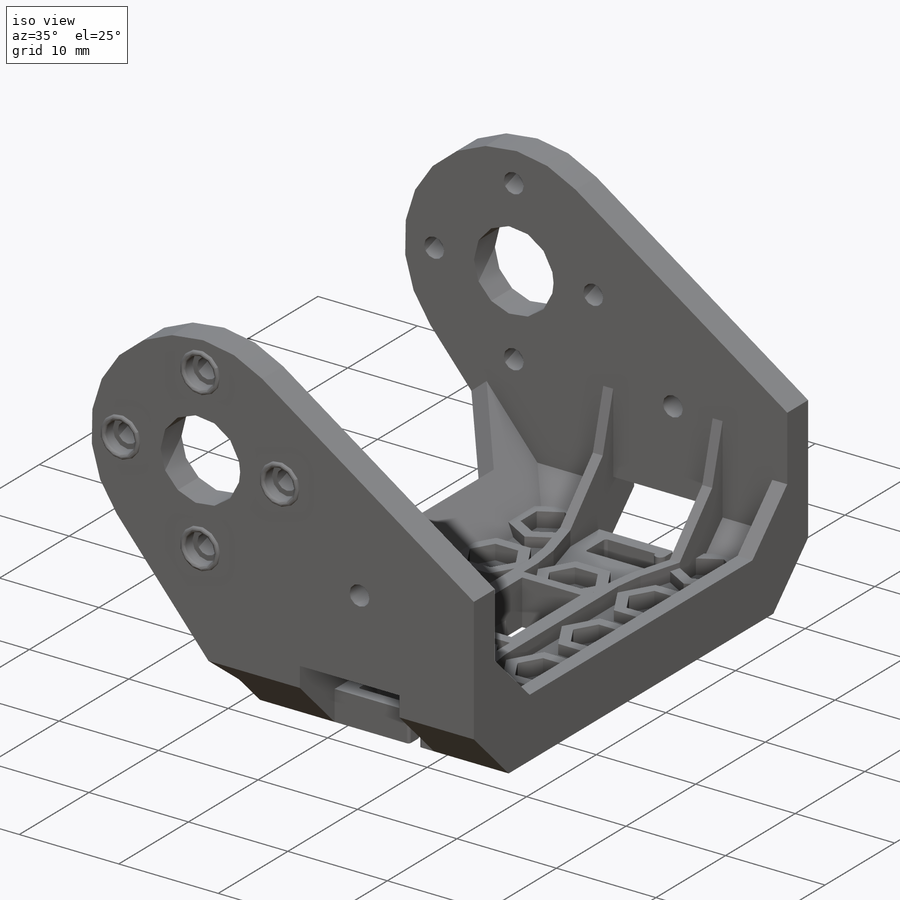
[diagram: iso view]
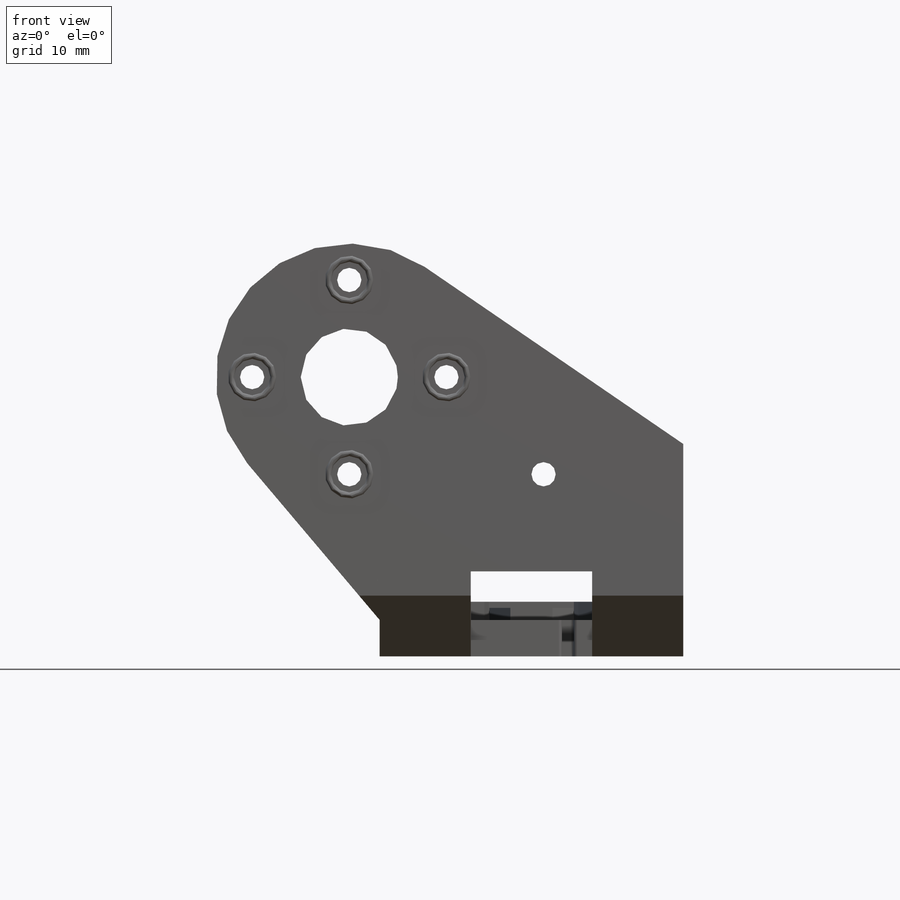
[diagram: front view]
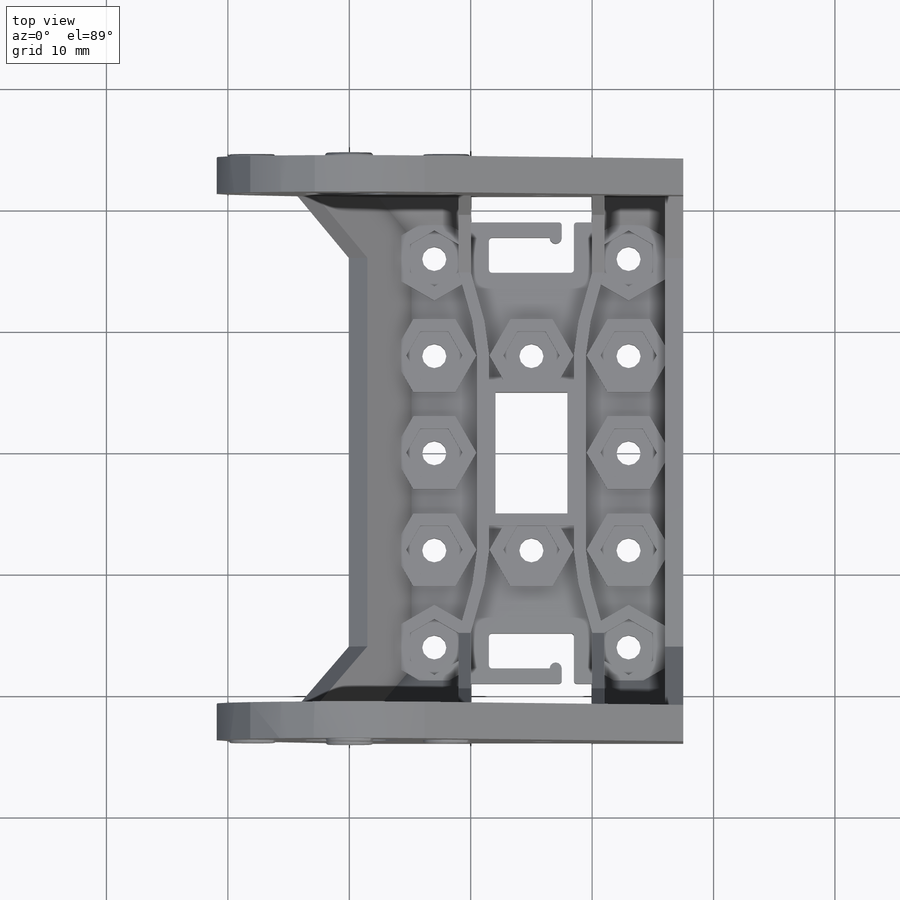
[diagram: top view]
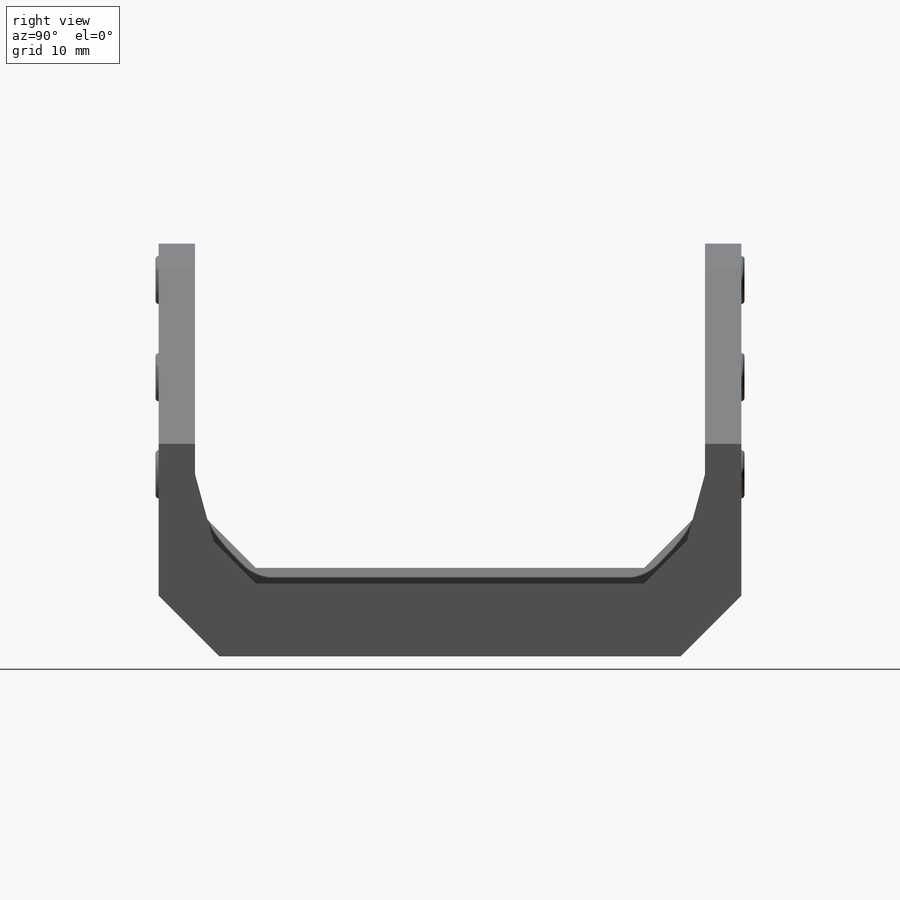
[diagram: right view]
SOLIDWORKS PART (.sldprt)
format: sldprt  version: not decoded by parser v0  size: 1,418,240 bytes
history: native  units: mm
features: sketch x25, cut_extrude x17, extrude x8, plane x3, mirror x3, material x1, fillet x1 (+13 scaffold rows collapsed)
feature tree (71):
  scaffold x13  (default folders/planes/origin — collapsed)
  material  "Material <not specified>"
  sketch  "Sketch1"  dims[c1.D1=~1.40249mm c1.D5=~11.367719mm c2.D1=23.0mm c2.D2=3.0mm c3.D1=8.0mm c3.D2=8.0mm c3.D3=8.0mm c3.D4=8.0mm]
  extrude  "Extrude1"  Depth=24mm
  sketch  "Sketch2"  dims[D1=3.0mm]
  cut_extrude  "Cut-Extrude1"  Depth=21mm
  sketch  "Sketch4"  dims[D1=5.0mm]
  cut_extrude  "Cut-Extrude4"  Depth=31mm
  sketch  "Sketch5"  dims[D1=8.0mm D2=3.0mm]
  extrude  "Extrude2"  Depth=30mm
  sketch  "Sketch6"
  cut_extrude  "Cut-Extrude5"  Depth=21mm
  sketch  "Sketch7"  dims[c1.D1=2.0mm c1.D2=23.5mm c1.D3=~3.644599mm c2.D3=~49.796398deg c3.D3=3.0mm]
  cut_extrude  "Cut-Extrude6"  Depth=21mm
  sketch  "Sketch8"
  cut_extrude  "Cut-Extrude7"  Depth=21mm
  plane  "Plane1"  Offset=0mm
  sketch  "Sketch9"  dims[c1.D1=~1.612917mm c1.D4=~1.515725mm c2.D1=8.0mm c2.D2=8.0mm c2.D3=8.0mm c2.D4=8.0mm]
  cut_extrude  "Cut-Extrude8"  Depth=10mm
  sketch  "Sketch10"  dims[c1.D7=~3.171032mm c1.D1=9.0mm c1.D2=8.5mm c1.D3=8.0mm c1.D4=8.0mm c1.D5=8.0mm c1.D6=8.0mm c2.D7=2.5mm c3.D7=30.0deg c4.D7=2.5mm c5.D7=150.0deg c6.D7=1.2mm c6.D1=120.0deg c7.D1=2.0mm c8.D1=105.0deg c9.D1=~2.309401mm c9.D2=~2.309401mm c10.D1=0.0mm c11.D1=60.0deg c12.D1=4.0mm c12.D2=4.0mm c12.D3=4.0mm]
  extrude  "Extrude3"  Depth=1mm
  sketch  "Sketch11"
  cut_extrude  "Cut-Extrude10"  Depth=0.5mm
  sketch  "Sketch12"  dims[D4=10.0mm D1=4.0mm D2=0.5mm D3=0.5mm]
  extrude  "Extrude10"  Depth=1.5mm
  plane  "Plane3"  Offset=0mm
  sketch  "Sketch13"  dims[D1=~0.854012mm]
  extrude  "Extrude11"  Depth=1mm
  plane  "Plane4"  Offset=5mm
  mirror  "Mirror1"
  sketch  "Sketch17"  dims[D1=7.0mm]
  cut_extrude  "Cut-Extrude11"  Depth=5mm
  sketch  "Sketch18"  dims[c1.D5=~0.486655mm c1.D6=0.25mm c1.D7=0.25mm c1.D1=1.5mm c1.D2=1.5mm c1.D3=1.25mm c1.D4=1.0mm c2.D5=1.5mm]
  cut_extrude  "Cut-Extrude12"  Depth=5mm
  sketch  "Sketch19"  dims[D1=8.0mm]
  cut_extrude  "Cut-Extrude13"  Depth=1.5mm
  sketch  "Sketch20"
  cut_extrude  "Cut-Extrude14"  Depth=5mm
  sketch  "Sketch21"  dims[c1.D1=~1.344363mm c1.D3=2.0mm c2.D1=15.0mm c2.D2=11.5mm c2.D3=~15.999955mm]
  cut_extrude  "Cut-Extrude15"  [1 undecoded]
  sketch  "Sketch22"  dims[D1=~2.702104mm]
  extrude  "Extrude12"  Depth=0.25mm
  fillet  "Fillet10"  Radius=0.25mm
  sketch  "Sketch23"
  cut_extrude  "Cut-Extrude16"  Depth=1mm
  mirror  "Mirror2"
  sketch  "Sketch24"  dims[c1.D1=~6.831951mm c2.D1=~2.048101deg c3.D1=~3.707942mm c3.D2=~3.451896mm c4.D1=3.0mm]
  extrude  "Extrude13"  Depth=10mm
  mirror  "Mirror3"
  sketch  "Sketch25"
  cut_extrude  "Cut-Extrude17"  [1 undecoded]
  sketch  "Sketch26"  dims[D1=~44.397574mm]
  cut_extrude  "Cut-Extrude18"  Depth=7mm
  sketch  "Sketch27"
  cut_extrude  "Cut-Extrude19"  Depth=7mm
  sketch  "Sketch28"
  extrude  "Extrude14"  Depth=2mm
  sketch  "Sketch36"
  cut_extrude  "Cut-Extrude22"  Depth=10.65mm
decode coverage: 40 of 54 modeling features carry decoded parameters
note: ~ marks probable driven/reference dimensions
note: 2 parameter values undecoded
note: suppression state not decoded; provenance and decode notes live in map.json
